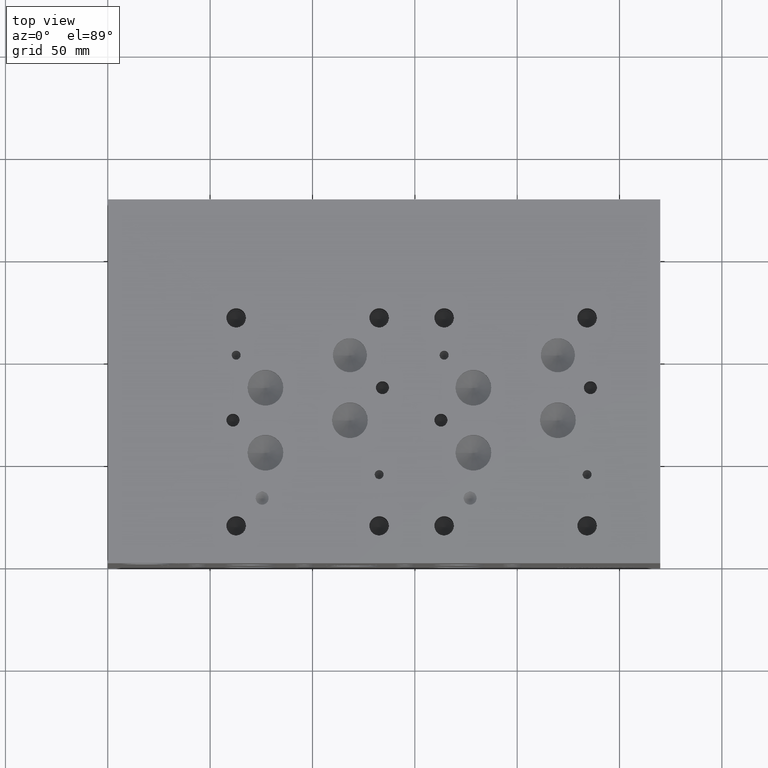
[diagram: clean part render]
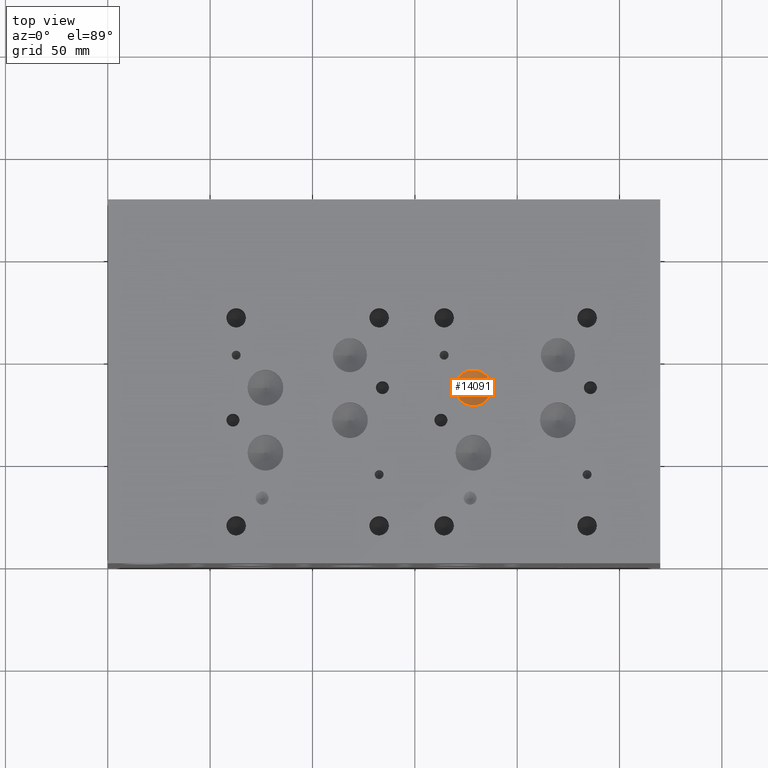
[diagram: same view with one face highlighted and labeled with its STEP entity id]
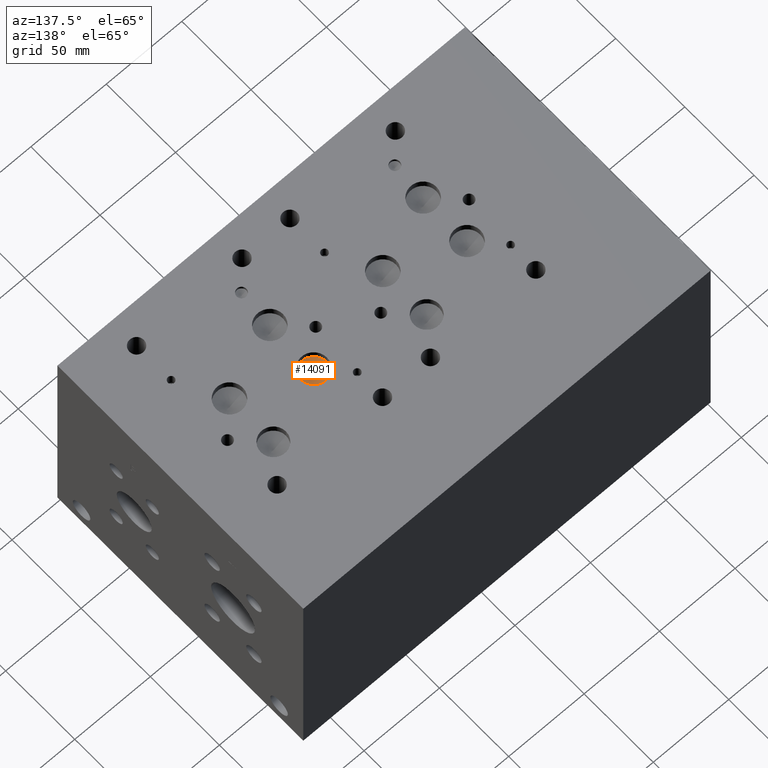
[diagram: same view with one face highlighted and labeled with its STEP entity id]
A machine part, top view. The second image highlights one B-rep face of the part: STEP entity #14091.
A second angle (auxiliary view) of the same face is appended — the face is thin or edge-on in the first view.
In plain terms, the highlighted conical surface has half-angle 60 deg.
Its self-contained STEP definition (entity closure, byte-faithful):
#200=CONICAL_SURFACE('',#15067,4.3688,1.0471975511966);
#566=CIRCLE('',#15068,8.7376);
#567=CIRCLE('',#15069,8.7376);
#1926=FACE_OUTER_BOUND('',#2792,.T.);
#2792=EDGE_LOOP('',(#12477,#12478,#12479,#12480));
#4096=LINE('',#23877,#5346);
#5346=VECTOR('',#18239,4.3688);
#6884=VERTEX_POINT('',#23873);
#6885=VERTEX_POINT('',#23874);
#6886=VERTEX_POINT('',#23876);
#8796=EDGE_CURVE('',#6884,#6885,#566,.T.);
#8797=EDGE_CURVE('',#6885,#6886,#4096,.T.);
#8798=EDGE_CURVE('',#6885,#6884,#567,.T.);
#12477=ORIENTED_EDGE('',*,*,#8796,.T.);
#12478=ORIENTED_EDGE('',*,*,#8797,.T.);
#12479=ORIENTED_EDGE('',*,*,#8797,.F.);
#12480=ORIENTED_EDGE('',*,*,#8798,.T.);
#14091=ADVANCED_FACE('',(#1926),#200,.F.);
#15067=AXIS2_PLACEMENT_3D('',#23872,#18235,#18236);
#15068=AXIS2_PLACEMENT_3D('',#23875,#18237,#18238);
#15069=AXIS2_PLACEMENT_3D('',#23878,#18240,#18241);
#18235=DIRECTION('center_axis',(0.,0.,1.));
#18236=DIRECTION('ref_axis',(1.,0.,0.));
#18237=DIRECTION('center_axis',(0.,0.,1.));
#18238=DIRECTION('ref_axis',(1.,0.,0.));
#18239=DIRECTION('',(0.866025403784439,1.06057523872491E-16,-0.5));
#18240=DIRECTION('center_axis',(0.,0.,1.));
#18241=DIRECTION('ref_axis',(1.,0.,0.));
#23872=CARTESIAN_POINT('Origin',(178.5874,85.725,144.833012143964));
#23873=CARTESIAN_POINT('',(187.325,85.725,147.35534));
#23874=CARTESIAN_POINT('',(169.8498,85.725,147.35534));
#23875=CARTESIAN_POINT('Origin',(178.5874,85.725,147.35534));
#23876=CARTESIAN_POINT('',(178.5874,85.725,142.310684287929));
#23877=CARTESIAN_POINT('',(174.2186,85.725,144.833012143964));
#23878=CARTESIAN_POINT('Origin',(178.5874,85.725,147.35534));